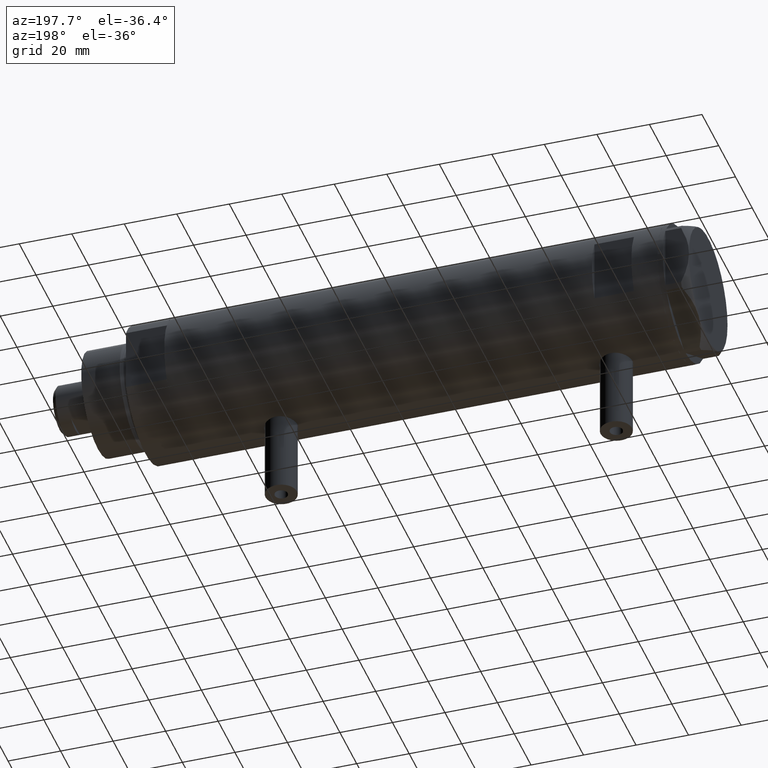
[diagram: clean part render]
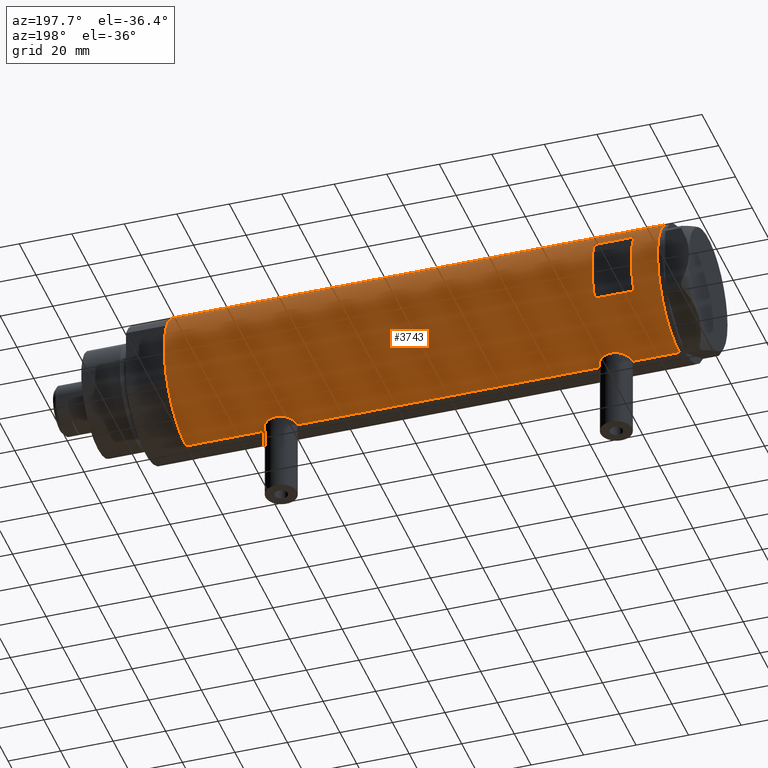
[diagram: same view with one face highlighted and labeled with its STEP entity id]
A machine part, auxiliary view. The second image highlights one B-rep face of the part: STEP entity #3743.
In plain terms, the highlighted cylindrical surface (partial cylindrical patch) has radius 26 mm, axis along (-1, -0, 0).
Its self-contained STEP definition (entity closure, byte-faithful):
#33 = ORIENTED_EDGE ( 'NONE', *, *, #1685, .F. ) ;
#37 = CARTESIAN_POINT ( 'NONE',  ( -25.95015815577422913, 1.621168830448742826, 75.98958570439820903 ) ) ;
#41 = CARTESIAN_POINT ( 'NONE',  ( 0.000000000000000000, 0.000000000000000000, 93.95000000000000284 ) ) ;
#85 = CARTESIAN_POINT ( 'NONE',  ( -25.24784248027028966, 6.209126813737962713, 69.12731838311943022 ) ) ;
#107 = CARTESIAN_POINT ( 'NONE',  ( -25.99759026373432036, 0.4091325989570689381, -63.88999890044897967 ) ) ;
#123 = VERTEX_POINT ( 'NONE', #1927 ) ;
#131 = CARTESIAN_POINT ( 'NONE',  ( 25.72923282622328500, 3.765147152416739917, 67.94514424215293502 ) ) ;
#135 = CARTESIAN_POINT ( 'NONE',  ( -25.33346170681504006, 5.849967696906726466, -55.44052947900495809 ) ) ;
#139 = CARTESIAN_POINT ( 'NONE',  ( -25.92432690655987315, 2.018143994254077978, 64.02070577177286737 ) ) ;
#148 = CARTESIAN_POINT ( 'NONE',  ( 25.98569222077104968, 0.9879514382926379845, -62.20081846687560301 ) ) ;
#164 = CARTESIAN_POINT ( 'NONE',  ( -25.98057228346869607, 1.024901789261878138, 63.78119414145174204 ) ) ;
#190 = CARTESIAN_POINT ( 'NONE',  ( -25.57167265924275057, 4.701795585128879296, -61.77276288310033436 ) ) ;
#194 = CARTESIAN_POINT ( 'NONE',  ( -25.49884629689154281, 5.081547904122039938, 66.30560194303913590 ) ) ;
#202 = ORIENTED_EDGE ( 'NONE', *, *, #4380, .F. ) ;
#203 = CARTESIAN_POINT ( 'NONE',  ( 24.97016856345952718, 7.245430721349219283, -56.70303040919392856 ) ) ;
#209 = DIRECTION ( 'NONE',  ( 0.000000000000000000, 4.625929269271486900E-15, 1.000000000000000000 ) ) ;
#217 = CARTESIAN_POINT ( 'NONE',  ( -25.49884629689154636, 5.081547904122044379, -61.29439805696090815 ) ) ;
#225 = CARTESIAN_POINT ( 'NONE',  ( 25.30960479024496479, 5.958491152160522830, -59.33139677679963597 ) ) ;
#230 = CARTESIAN_POINT ( 'NONE',  ( 12.12435565298214080, 23.00000000000000355, -93.95000000000000284 ) ) ;
#257 = CARTESIAN_POINT ( 'NONE',  ( -26.00000000000000355, -8.503928565788675107E-16, -51.39999999999999858 ) ) ;
#272 = EDGE_CURVE ( 'NONE', #3383, #3757, #3771, .T. ) ;
#273 = CARTESIAN_POINT ( 'NONE',  ( 25.93077501166307641, 1.957027822413551332, -47.49302141437592439 ) ) ;
#297 = CARTESIAN_POINT ( 'NONE',  ( 25.38117076385348625, 5.641057083563588037, -49.80143420258151821 ) ) ;
#304 = EDGE_CURVE ( 'NONE', #4161, #3757, #406, .T. ) ;
#309 = CARTESIAN_POINT ( 'NONE',  ( 25.98255381630416139, 0.9836221648041364451, 81.88933098058191717 ) ) ;
#341 = CARTESIAN_POINT ( 'NONE',  ( 26.00000000000000355, 3.343657407582877388E-16, -62.25000000000000000 ) ) ;
#342 = VECTOR ( 'NONE', #1190, 1000.000000000000000 ) ;
#349 = VECTOR ( 'NONE', #2119, 1000.000000000000000 ) ;
#361 = AXIS2_PLACEMENT_3D ( 'NONE', #5119, #1991, #1106 ) ;
#406 = LINE ( 'NONE', #2008, #497 ) ;
#441 = CARTESIAN_POINT ( 'NONE',  ( -26.00000000000000355, 3.184081677783118585E-15, 93.95000000000000284 ) ) ;
#497 = VECTOR ( 'NONE', #2769, 1000.000000000000000 ) ;
#520 = CARTESIAN_POINT ( 'NONE',  ( 25.41763780493359803, 5.474943943663456380, 79.58176313788932532 ) ) ;
#524 = CARTESIAN_POINT ( 'NONE',  ( -25.92257874449351007, 2.014648337067152184, -51.73003581636323389 ) ) ;
#551 = CARTESIAN_POINT ( 'NONE',  ( 25.72868876879096334, 3.768709330223698473, 80.95267486870062612 ) ) ;
#555 = CARTESIAN_POINT ( 'NONE',  ( -25.23766275406409676, 6.249830297096031551, -57.23808095444884003 ) ) ;
#577 = CARTESIAN_POINT ( 'NONE',  ( 25.78922176490238272, 3.335318700939508219, 67.71449431233527605 ) ) ;
#590 = AXIS2_PLACEMENT_3D ( 'NONE', #41, #3237, #3261 ) ;
#592 = CARTESIAN_POINT ( 'NONE',  ( 26.00000000000000355, 3.343657407582877388E-16, -62.25000000000000000 ) ) ;
#602 = CARTESIAN_POINT ( 'NONE',  ( 25.63006864069250668, 4.375159448492141223, 68.35345588241118264 ) ) ;
#607 = CARTESIAN_POINT ( 'NONE',  ( -25.23757896588369221, 6.250168635417633567, -58.05675308410501145 ) ) ;
#609 = CARTESIAN_POINT ( 'NONE',  ( 0.000000000000000000, 0.000000000000000000, -93.95000000000000284 ) ) ;
#631 = CARTESIAN_POINT ( 'NONE',  ( 25.08669247833292459, 6.831361936037321669, 77.55537739403790454 ) ) ;
#635 = CARTESIAN_POINT ( 'NONE',  ( -25.31738333113901618, 5.918941409682884291, -55.63242077527677765 ) ) ;
#678 = CARTESIAN_POINT ( 'NONE',  ( -26.00000000000000355, 3.184077527325983904E-15, 63.70000000000000995 ) ) ;
#682 = CARTESIAN_POINT ( 'NONE',  ( 0.000000000000000000, 0.000000000000000000, 83.95000000000000284 ) ) ;
#717 = ORIENTED_EDGE ( 'NONE', *, *, #2133, .F. ) ;
#721 = CARTESIAN_POINT ( 'NONE',  ( 26.00000000000000355, 0.000000000000000000, 93.95000000000000284 ) ) ;
#736 = DIRECTION ( 'NONE',  ( 0.000000000000000000, 0.000000000000000000, 1.000000000000000000 ) ) ;
#743 = CARTESIAN_POINT ( 'NONE',  ( 25.98255381630415783, 0.9836221648041303389, -47.31066901941807856 ) ) ;
#783 = CARTESIAN_POINT ( 'NONE',  ( 26.00000000000000355, -3.975028449552882818E-20, 81.94999999999998863 ) ) ;
#843 = ORIENTED_EDGE ( 'NONE', *, *, #3281, .F. ) ;
#863 = VECTOR ( 'NONE', #5111, 1000.000000000000000 ) ;
#877 = CARTESIAN_POINT ( 'NONE',  ( -25.23766275406408965, 6.249830297096023557, 70.36191904555120402 ) ) ;
#896 = VERTEX_POINT ( 'NONE', #1737 ) ;
#910 = ORIENTED_EDGE ( 'NONE', *, *, #4333, .F. ) ;
#935 = CARTESIAN_POINT ( 'NONE',  ( 25.38132706741445688, 5.649034551923786118, -59.70731952814044519 ) ) ;
#949 = EDGE_CURVE ( 'NONE', #3885, #3411, #2093, .T. ) ;
#1004 = CARTESIAN_POINT ( 'NONE',  ( -25.31518616157687163, 5.930210831981644226, -59.66587117207024704 ) ) ;
#1008 = B_SPLINE_CURVE_WITH_KNOTS ( 'NONE', 3,
 ( #2419, #2442, #1586, #3630, #37, #3180, #1227, #4020, #1198, #2002, #2795, #1613, #3207, #4049, #2053, #3655, #1664, #3257, #1277, #4473, #877, #4898, #85, #1796, #1410, #3394, #2521, #5006, #1328, #194, #3755, #3001, #4946, #4976, #4610, #1717, #2979, #139, #1689, #164, #2155, #1010, #4556, #678 ),
 .UNSPECIFIED., .F., .F.,
 ( 4, 2, 2, 2, 2, 2, 2, 2, 2, 2, 2, 2, 2, 2, 2, 2, 2, 2, 2, 2, 2, 4 ),
 ( 1.191872608207982896E-18, 0.001225774033668414415, 0.001838661050502624766, 0.002451548067336834901, 0.003677322101005254303, 0.004903096134673673272, 0.006128870168342093541, 0.007354644202010512943, 0.007967531218844704430, 0.008580418235678894182, 0.009806192269347313584, 0.01103196630301573472, 0.01225774033668415586, 0.01287062735351834561, 0.01348351437035253536, 0.01409640138718672858, 0.01470928840402092007, 0.01593506243768930131, 0.01716083647135768081, 0.01838661050502606725, 0.01899949752186025700, 0.01961238453869444676 ),
 .UNSPECIFIED. ) ;
#1009 = EDGE_CURVE ( 'NONE', #3885, #1013, #2329, .T. ) ;
#1010 = CARTESIAN_POINT ( 'NONE',  ( -25.99759026373432391, 0.4091325989570679389, 63.71000109955102175 ) ) ;
#1013 = VERTEX_POINT ( 'NONE', #341 ) ;
#1020 = CARTESIAN_POINT ( 'NONE',  ( 25.08669247833291749, 6.831361936037321669, -51.64462260596209831 ) ) ;
#1026 = DIRECTION ( 'NONE',  ( 0.000000000000000000, 1.000000000000000000, -4.803849625781927035E-15 ) ) ;
#1028 = CARTESIAN_POINT ( 'NONE',  ( 25.01140519645288762, 7.101774040639619479, 72.02607764299175130 ) ) ;
#1032 = CARTESIAN_POINT ( 'NONE',  ( -25.98789693408478740, 0.8193301824842007530, -63.84948980265349405 ) ) ;
#1103 = CARTESIAN_POINT ( 'NONE',  ( 25.99652140603931727, 0.4914164889130596126, 81.93796820480459075 ) ) ;
#1106 = DIRECTION ( 'NONE',  ( 1.000000000000000000, 0.000000000000000000, 0.000000000000000000 ) ) ;
#1148 = CARTESIAN_POINT ( 'NONE',  ( 25.41763780493360514, 5.474943943663457269, -49.61823686211067042 ) ) ;
#1158 = LINE ( 'NONE', #2753, #2350 ) ;
#1167 = ORIENTED_EDGE ( 'NONE', *, *, #272, .F. ) ;
#1168 = VERTEX_POINT ( 'NONE', #5167 ) ;
#1190 = DIRECTION ( 'NONE',  ( 0.000000000000000000, 0.000000000000000000, 1.000000000000000000 ) ) ;
#1198 = CARTESIAN_POINT ( 'NONE',  ( -25.81251897318926680, 3.135439098787735190, 75.37199178085172946 ) ) ;
#1227 = CARTESIAN_POINT ( 'NONE',  ( -25.90661719257679607, 2.209805098346973029, 75.79988745781523107 ) ) ;
#1244 = EDGE_CURVE ( 'NONE', #3411, #1747, #4743, .T. ) ;
#1277 = CARTESIAN_POINT ( 'NONE',  ( -25.27696731428695998, 6.089059008147561514, 71.37416306959482881 ) ) ;
#1328 = CARTESIAN_POINT ( 'NONE',  ( -25.45277932469920046, 5.307477387851101014, 66.64327199834690418 ) ) ;
#1343 = CARTESIAN_POINT ( 'NONE',  ( 24.95233689475078620, 7.306396477445174398, 72.73896186853336587 ) ) ;
#1346 = LINE ( 'NONE', #1758, #3297 ) ;
#1362 = CARTESIAN_POINT ( 'NONE',  ( 25.11254978876589306, 6.737777305585159304, -58.08025351746411502 ) ) ;
#1404 = CARTESIAN_POINT ( 'NONE',  ( -25.99009688862344092, 0.8219492608955333290, -51.44084060773424483 ) ) ;
#1410 = CARTESIAN_POINT ( 'NONE',  ( -25.31518616157687518, 5.930210831981638009, 67.93412882792976859 ) ) ;
#1423 = CARTESIAN_POINT ( 'NONE',  ( 25.48882460966380492, 5.133289275481214275, 68.97656476402090675 ) ) ;
#1426 = CARTESIAN_POINT ( 'NONE',  ( -25.92432690655987315, 2.018143994254076201, -63.57929422822715537 ) ) ;
#1439 = CARTESIAN_POINT ( 'NONE',  ( 25.17636585680005723, 6.493453152855874322, -50.98900750337196541 ) ) ;
#1442 = CIRCLE ( 'NONE', #2517, 26.00000000000000355 ) ;
#1448 = CARTESIAN_POINT ( 'NONE',  ( 25.20855488770172315, 6.367749707222633226, 78.42002223040960018 ) ) ;
#1496 = FACE_BOUND ( 'NONE', #3637, .T. ) ;
#1579 = CARTESIAN_POINT ( 'NONE',  ( -26.00000000000000355, 3.184081677783118585E-15, -93.95000000000000284 ) ) ;
#1586 = CARTESIAN_POINT ( 'NONE',  ( -25.99009688862344092, 0.8219492608955324409, 76.15915939226574949 ) ) ;
#1613 = CARTESIAN_POINT ( 'NONE',  ( -25.57189498399054983, 4.707763994471525493, 74.08090281055548587 ) ) ;
#1657 = ORIENTED_EDGE ( 'NONE', *, *, #1970, .F. ) ;
#1664 = CARTESIAN_POINT ( 'NONE',  ( -25.31738333113901263, 5.918941409682878074, 71.96757922472318114 ) ) ;
#1685 = EDGE_CURVE ( 'NONE', #3018, #896, #1442, .T. ) ;
#1689 = CARTESIAN_POINT ( 'NONE',  ( -25.95208098418916975, 1.628413954368974625, 63.90193207829288013 ) ) ;
#1701 = EDGE_CURVE ( 'NONE', #4900, #4119, #4308, .T. ) ;
#1709 = VERTEX_POINT ( 'NONE', #3120 ) ;
#1712 = CARTESIAN_POINT ( 'NONE',  ( -26.00000000000000355, 3.184077527250253257E-15, -63.90000000000001279 ) ) ;
#1717 = CARTESIAN_POINT ( 'NONE',  ( -25.81206132723604796, 3.139065735901513055, 64.53021230639123473 ) ) ;
#1732 = CARTESIAN_POINT ( 'NONE',  ( 25.38132706741445332, 5.649034551923781677, 69.49268047185955766 ) ) ;
#1737 = CARTESIAN_POINT ( 'NONE',  ( 12.12435565298214080, 23.00000000000000355, 83.95000000000000284 ) ) ;
#1746 = CARTESIAN_POINT ( 'NONE',  ( 25.27545867390324119, 6.096774941222088628, -50.37522593042033492 ) ) ;
#1747 = VERTEX_POINT ( 'NONE', #3007 ) ;
#1755 = CARTESIAN_POINT ( 'NONE',  ( 25.00820649268565887, 7.115348876445588999, 76.87184000475453161 ) ) ;
#1758 = CARTESIAN_POINT ( 'NONE',  ( -12.12435565298214080, 23.00000000000000355, -93.95000000000000284 ) ) ;
#1786 = CARTESIAN_POINT ( 'NONE',  ( 24.97016856345952007, 7.245430721349213954, 72.49696959080606007 ) ) ;
#1790 = CARTESIAN_POINT ( 'NONE',  ( -25.38875076695534361, 5.605452563035141722, -60.42185900824105715 ) ) ;
#1791 = ORIENTED_EDGE ( 'NONE', *, *, #1701, .T. ) ;
#1796 = CARTESIAN_POINT ( 'NONE',  ( -25.28673619335055278, 6.048783215285170378, 68.32449009651820404 ) ) ;
#1814 = CARTESIAN_POINT ( 'NONE',  ( -25.45277932469921467, 5.307477387851106343, -60.95672800165311855 ) ) ;
#1823 = CARTESIAN_POINT ( 'NONE',  ( 24.95233689475079331, 7.306396477445179727, -56.46103813146666539 ) ) ;
#1831 = CARTESIAN_POINT ( 'NONE',  ( 25.11254978876589306, 6.737777305585155752, 71.11974648253585940 ) ) ;
#1835 = DIRECTION ( 'NONE',  ( 0.000000000000000000, 0.000000000000000000, 1.000000000000000000 ) ) ;
#1837 = EDGE_LOOP ( 'NONE', ( #2510, #2455, #910, #1791, #4877, #3656, #1167, #1657, #2986, #717, #843, #4917 ) ) ;
#1844 = CARTESIAN_POINT ( 'NONE',  ( 25.97197502027375293, 1.230965554787593730, -47.34759175501623218 ) ) ;
#1863 = CIRCLE ( 'NONE', #2117, 26.00000000000000355 ) ;
#1898 = DIRECTION ( 'NONE',  ( 0.000000000000000000, 0.000000000000000000, 1.000000000000000000 ) ) ;
#1927 = CARTESIAN_POINT ( 'NONE',  ( 26.00000000000000355, -2.747580718823405516E-15, 66.95000000000000284 ) ) ;
#1970 = EDGE_CURVE ( 'NONE', #5028, #3383, #4575, .T. ) ;
#1991 = DIRECTION ( 'NONE',  ( 0.000000000000000000, 0.000000000000000000, 1.000000000000000000 ) ) ;
#2002 = CARTESIAN_POINT ( 'NONE',  ( -25.72105193281917579, 3.813738527046907745, 74.91833691099432713 ) ) ;
#2004 = EDGE_CURVE ( 'NONE', #123, #5028, #2694, .T. ) ;
#2006 = B_SPLINE_CURVE_WITH_KNOTS ( 'NONE', 3,
 ( #592, #2586, #148, #4986, #2561, #3423, #2141, #2218, #2927, #4510, #4534, #2529, #2190, #935, #225, #4168, #1362, #3791, #2165, #203, #1823, #4139, #4565, #3343, #3741, #5013, #4617, #1020, #5032, #1439, #2110, #1746, #3101, #297, #1148, #2638, #3033, #4740, #4344, #2743, #273, #1844, #743, #4687, #2686, #3131 ),
 .UNSPECIFIED., .F., .F.,
 ( 4, 2, 2, 2, 2, 2, 2, 2, 2, 2, 2, 2, 2, 2, 2, 2, 2, 2, 2, 2, 2, 2, 4 ),
 ( 3.246886709775799722E-19, 0.001473395154583074379, 0.002210092731874609400, 0.002946790309166144421, 0.004420185463749214463, 0.005156883041040750786, 0.005893580618332287108, 0.007366975772915358017, 0.008840370927498430662, 0.009577068504789955708, 0.01031376608208147902, 0.01178716123666452911, 0.01326055639124757921, 0.01473395154583062930, 0.01547064912312214567, 0.01620734670041366204, 0.01694404427770517668, 0.01768074185499669479, 0.01915413700957973794, 0.02062753216416278457, 0.02210092731874583119, 0.02283762489603735277, 0.02357432247332888128 ),
 .UNSPECIFIED. ) ;
#2008 = CARTESIAN_POINT ( 'NONE',  ( -26.00000000000000355, 3.184081677783118585E-15, -93.95000000000000284 ) ) ;
#2048 = CARTESIAN_POINT ( 'NONE',  ( -26.00000000000000355, -8.503928565788675107E-16, -51.39999999999999858 ) ) ;
#2053 = CARTESIAN_POINT ( 'NONE',  ( -25.38675822915647728, 5.615881323213574028, 72.72306781662010167 ) ) ;
#2058 = CARTESIAN_POINT ( 'NONE',  ( -12.12435565298214080, 23.00000000000000355, 83.95000000000000284 ) ) ;
#2093 = CIRCLE ( 'NONE', #4202, 26.00000000000000355 ) ;
#2110 = CARTESIAN_POINT ( 'NONE',  ( 25.20855488770171959, 6.367749707222635891, -50.77997776959043108 ) ) ;
#2117 = AXIS2_PLACEMENT_3D ( 'NONE', #3428, #209, #1026 ) ;
#2119 = DIRECTION ( 'NONE',  ( 0.000000000000000000, 0.000000000000000000, 1.000000000000000000 ) ) ;
#2133 = EDGE_CURVE ( 'NONE', #1709, #123, #1158, .T. ) ;
#2139 = B_SPLINE_CURVE_WITH_KNOTS ( 'NONE', 3,
 ( #2048, #2625, #1404, #3388, #3331, #524, #4232, #4204, #2971, #3308, #3727, #4941, #4152, #4579, #5001, #135, #635, #2597, #4918, #3413, #555, #607, #4179, #2941, #1004, #2996, #1790, #2206, #1814, #217, #2231, #190, #3019, #4551, #3805, #3751, #5021, #1426, #4631, #2544, #1032, #107, #3776, #1712 ),
 .UNSPECIFIED., .F., .F.,
 ( 4, 2, 2, 2, 2, 2, 2, 2, 2, 2, 2, 2, 2, 2, 2, 2, 2, 2, 2, 2, 2, 4 ),
 ( 8.259724962660511443E-19, 0.001225774033668413547, 0.001838661050502616960, 0.002451548067336820590, 0.003677322101005227849, 0.004903096134673635108, 0.006128870168342044969, 0.007354644202010452228, 0.007967531218844647184, 0.008580418235678840405, 0.009806192269347230317, 0.01103196630301561676, 0.01225774033668400667, 0.01287062735351820163, 0.01348351437035239485, 0.01409640138718658807, 0.01470928840402078129, 0.01593506243768920069, 0.01716083647135761489, 0.01838661050502603256, 0.01899949752186024313, 0.01961238453869445023 ),
 .UNSPECIFIED. ) ;
#2141 = CARTESIAN_POINT ( 'NONE',  ( 25.86510134953875450, 2.654921787384013854, -61.76867061694904493 ) ) ;
#2148 = CARTESIAN_POINT ( 'NONE',  ( 25.94484652078418563, 1.709678645892022342, 67.14334653240823059 ) ) ;
#2155 = CARTESIAN_POINT ( 'NONE',  ( -25.98789693408479096, 0.8193301824841990877, 63.75051019734653579 ) ) ;
#2165 = CARTESIAN_POINT ( 'NONE',  ( 25.01140519645288762, 7.101774040639623919, -57.17392235700823733 ) ) ;
#2172 = CARTESIAN_POINT ( 'NONE',  ( 26.00000000000000355, -2.747580718823405516E-15, 66.95000000000000284 ) ) ;
#2190 = CARTESIAN_POINT ( 'NONE',  ( 25.48882460966380492, 5.133289275481218716, -60.22343523597908188 ) ) ;
#2202 = CARTESIAN_POINT ( 'NONE',  ( 25.52465069878074289, 4.952713637311392247, 68.81255139184744962 ) ) ;
#2206 = CARTESIAN_POINT ( 'NONE',  ( -25.43062364804612940, 5.412314182902760784, -60.78227648580931941 ) ) ;
#2218 = CARTESIAN_POINT ( 'NONE',  ( 25.78922176490237916, 3.335318700939508219, -61.48550568766475521 ) ) ;
#2227 = CARTESIAN_POINT ( 'NONE',  ( 24.96662810169869573, 7.257932614256865200, 76.40297309526735603 ) ) ;
#2231 = CARTESIAN_POINT ( 'NONE',  ( -25.52275868012768356, 4.960454986366454655, -61.45761629406634796 ) ) ;
#2329 = LINE ( 'NONE', #3929, #3936 ) ;
#2350 = VECTOR ( 'NONE', #3845, 1000.000000000000000 ) ;
#2419 = CARTESIAN_POINT ( 'NONE',  ( -26.00000000000000355, 1.227111019500118713E-15, 76.20000000000001705 ) ) ;
#2442 = CARTESIAN_POINT ( 'NONE',  ( -26.00000000000000711, 0.4145874687851191509, 76.20000000000003126 ) ) ;
#2455 = ORIENTED_EDGE ( 'NONE', *, *, #1244, .T. ) ;
#2510 = ORIENTED_EDGE ( 'NONE', *, *, #949, .T. ) ;
#2517 = AXIS2_PLACEMENT_3D ( 'NONE', #682, #5178, #4729 ) ;
#2521 = CARTESIAN_POINT ( 'NONE',  ( -25.38875076695534361, 5.605452563035131064, 67.17814099175893716 ) ) ;
#2529 = CARTESIAN_POINT ( 'NONE',  ( 25.52465069878074999, 4.952713637311402906, -60.38744860815256743 ) ) ;
#2540 = CARTESIAN_POINT ( 'NONE',  ( 25.92799636947105668, 1.948138538329397651, 67.20322312211786198 ) ) ;
#2544 = CARTESIAN_POINT ( 'NONE',  ( -25.98057228346870673, 1.024901789261887464, -63.81880585854828070 ) ) ;
#2561 = CARTESIAN_POINT ( 'NONE',  ( 25.92799636947105313, 1.948138538329397651, -61.99677687788213376 ) ) ;
#2569 = CARTESIAN_POINT ( 'NONE',  ( 25.98569222077104968, 0.9879514382926418703, 66.99918153312439983 ) ) ;
#2586 = CARTESIAN_POINT ( 'NONE',  ( 26.00000000000000711, 0.4983968644076025023, -62.25000000000002132 ) ) ;
#2597 = CARTESIAN_POINT ( 'NONE',  ( -25.28915991580758771, 6.038390257328915212, -56.02447348853092279 ) ) ;
#2622 = CARTESIAN_POINT ( 'NONE',  ( 24.90951684770588770, 7.451587374037535128, 73.46604395478802019 ) ) ;
#2625 = CARTESIAN_POINT ( 'NONE',  ( -26.00000000000000711, 0.4145874687851193174, -51.39999999999999858 ) ) ;
#2638 = CARTESIAN_POINT ( 'NONE',  ( 25.52590365620542912, 4.955152228772147893, -49.09876272411761988 ) ) ;
#2650 = CARTESIAN_POINT ( 'NONE',  ( 25.31017500740586001, 5.951503630041874437, 79.02049592637401076 ) ) ;
#2671 = CARTESIAN_POINT ( 'NONE',  ( 26.00000000000000711, 0.2455784580650491045, 81.94999999999997442 ) ) ;
#2686 = CARTESIAN_POINT ( 'NONE',  ( 26.00000000000000000, 0.2455784580650491877, -47.25000000000000000 ) ) ;
#2694 = B_SPLINE_CURVE_WITH_KNOTS ( 'NONE', 3,
 ( #2172, #3721, #2569, #2148, #2540, #3748, #5019, #577, #131, #602, #4200, #2202, #1423, #1732, #3017, #2967, #1831, #5043, #1028, #1786, #1343, #2622, #3382, #2993, #4228, #2227, #1755, #631, #3353, #3430, #1448, #4655, #2650, #3327, #520, #2937, #4545, #551, #4966, #3899, #4251, #3111, #309, #1103, #2671, #3143 ),
 .UNSPECIFIED., .F., .F.,
 ( 4, 2, 2, 2, 2, 2, 2, 2, 2, 2, 2, 2, 2, 2, 2, 2, 2, 2, 2, 2, 2, 2, 4 ),
 ( 2.668061416744542197E-18, 0.001473395154583026240, 0.002210092731874533506, 0.002946790309166040771, 0.004420185463749071349, 0.005156883041040585987, 0.005893580618332101492, 0.007366975772915162861, 0.008840370927498224229, 0.009577068504789754480, 0.01031376608208128473, 0.01178716123666438687, 0.01326055639124748900, 0.01473395154583059113, 0.01547064912312212312, 0.01620734670041365511, 0.01694404427770518709, 0.01768074185499672255, 0.01915413700957975529, 0.02062753216416278457, 0.02210092731874581731, 0.02283762489603732848, 0.02357432247332884312 ),
 .UNSPECIFIED. ) ;
#2743 = CARTESIAN_POINT ( 'NONE',  ( 25.89067367629246164, 2.424883365422552561, -47.63594795494832113 ) ) ;
#2753 = CARTESIAN_POINT ( 'NONE',  ( 26.00000000000000355, 0.000000000000000000, -93.95000000000000284 ) ) ;
#2769 = DIRECTION ( 'NONE',  ( 0.000000000000000000, 0.000000000000000000, 1.000000000000000000 ) ) ;
#2795 = CARTESIAN_POINT ( 'NONE',  ( -25.67095236150574777, 4.133649689219788925, 74.65535228274264057 ) ) ;
#2893 = VERTEX_POINT ( 'NONE', #3895 ) ;
#2908 = EDGE_CURVE ( 'NONE', #896, #1168, #3821, .T. ) ;
#2927 = CARTESIAN_POINT ( 'NONE',  ( 25.72923282622328855, 3.765147152416745246, -61.25485575784708914 ) ) ;
#2937 = CARTESIAN_POINT ( 'NONE',  ( 25.52590365620543622, 4.955152228772151446, 80.10123727588241138 ) ) ;
#2941 = CARTESIAN_POINT ( 'NONE',  ( -25.28673619335056699, 6.048783215285175707, -59.27550990348180449 ) ) ;
#2967 = CARTESIAN_POINT ( 'NONE',  ( 25.17424625143663519, 6.506691718592092499, 70.68758373966274178 ) ) ;
#2971 = CARTESIAN_POINT ( 'NONE',  ( -25.81251897318926680, 3.135439098787741852, -52.22800821914827907 ) ) ;
#2979 = CARTESIAN_POINT ( 'NONE',  ( -25.85449082491264150, 2.772892880050696007, 64.33390702514678594 ) ) ;
#2986 = ORIENTED_EDGE ( 'NONE', *, *, #2004, .F. ) ;
#2991 = CARTESIAN_POINT ( 'NONE',  ( 26.00000000000000355, 0.000000000000000000, -93.95000000000000284 ) ) ;
#2993 = CARTESIAN_POINT ( 'NONE',  ( 24.89471231507667426, 7.500219916954787180, 74.93878226883029470 ) ) ;
#2996 = CARTESIAN_POINT ( 'NONE',  ( -25.36894112891956254, 5.694149517195242538, -60.23482505198307990 ) ) ;
#3001 = CARTESIAN_POINT ( 'NONE',  ( -25.57167265924275057, 4.701795585128869526, 65.82723711689968127 ) ) ;
#3007 = CARTESIAN_POINT ( 'NONE',  ( -26.00000000000000355, 3.184077527250253257E-15, -63.90000000000001279 ) ) ;
#3017 = CARTESIAN_POINT ( 'NONE',  ( 25.30960479024496479, 5.958491152160513948, 69.86860322320036687 ) ) ;
#3018 = VERTEX_POINT ( 'NONE', #2058 ) ;
#3019 = CARTESIAN_POINT ( 'NONE',  ( -25.59680708126580129, 4.563450671387948354, -61.92543949979970819 ) ) ;
#3033 = CARTESIAN_POINT ( 'NONE',  ( 25.59685363299823280, 4.579266302355748053, -48.79027931897346804 ) ) ;
#3047 = DIRECTION ( 'NONE',  ( 1.000000000000000000, 0.000000000000000000, 0.000000000000000000 ) ) ;
#3082 = CARTESIAN_POINT ( 'NONE',  ( -26.00000000000000355, 3.184081677783118585E-15, -93.95000000000000284 ) ) ;
#3089 = CYLINDRICAL_SURFACE ( 'NONE', #361, 26.00000000000000355 ) ;
#3101 = CARTESIAN_POINT ( 'NONE',  ( 25.31017500740584936, 5.951503630041857562, -50.17950407362597076 ) ) ;
#3111 = CARTESIAN_POINT ( 'NONE',  ( 25.97197502027376004, 1.230965554787597060, 81.85240824498373513 ) ) ;
#3120 = CARTESIAN_POINT ( 'NONE',  ( 26.00000000000000355, -3.975025925197986111E-20, -47.25000000000000000 ) ) ;
#3131 = CARTESIAN_POINT ( 'NONE',  ( 26.00000000000000355, -3.975025925197986111E-20, -47.25000000000000000 ) ) ;
#3143 = CARTESIAN_POINT ( 'NONE',  ( 26.00000000000000355, -3.975028449552882818E-20, 81.94999999999998863 ) ) ;
#3180 = CARTESIAN_POINT ( 'NONE',  ( -25.92257874449350652, 2.014648337067151296, 75.86996418363679595 ) ) ;
#3207 = CARTESIAN_POINT ( 'NONE',  ( -25.52242378584899640, 4.965907353613394193, 73.76719602921740204 ) ) ;
#3237 = DIRECTION ( 'NONE',  ( 0.000000000000000000, 0.000000000000000000, 1.000000000000000000 ) ) ;
#3257 = CARTESIAN_POINT ( 'NONE',  ( -25.28915991580760192, 6.038390257328910771, 71.57552651146907863 ) ) ;
#3261 = DIRECTION ( 'NONE',  ( 1.000000000000000000, 0.000000000000000000, 0.000000000000000000 ) ) ;
#3281 = EDGE_CURVE ( 'NONE', #1013, #1709, #2006, .T. ) ;
#3297 = VECTOR ( 'NONE', #3357, 1000.000000000000000 ) ;
#3308 = CARTESIAN_POINT ( 'NONE',  ( -25.72105193281916868, 3.813738527046913962, -52.68166308900566719 ) ) ;
#3327 = CARTESIAN_POINT ( 'NONE',  ( 25.38117076385347559, 5.641057083563602248, 79.39856579741847042 ) ) ;
#3331 = CARTESIAN_POINT ( 'NONE',  ( -25.95015815577423268, 1.621168830448744158, -51.61041429560182081 ) ) ;
#3343 = CARTESIAN_POINT ( 'NONE',  ( 24.89471231507667071, 7.500219916954787180, -54.26121773116971525 ) ) ;
#3353 = CARTESIAN_POINT ( 'NONE',  ( 25.11550258961940330, 6.725017566862031337, 77.77928477806021590 ) ) ;
#3357 = DIRECTION ( 'NONE',  ( 0.000000000000000000, 0.000000000000000000, 1.000000000000000000 ) ) ;
#3382 = CARTESIAN_POINT ( 'NONE',  ( 24.89484527721569052, 7.499778575171894168, 73.95449194517063063 ) ) ;
#3383 = VERTEX_POINT ( 'NONE', #721 ) ;
#3388 = CARTESIAN_POINT ( 'NONE',  ( -25.96182217530152769, 1.422664245316466847, -51.56064726907609241 ) ) ;
#3394 = CARTESIAN_POINT ( 'NONE',  ( -25.36894112891957320, 5.694149517195235433, 67.36517494801691441 ) ) ;
#3411 = VERTEX_POINT ( 'NONE', #3971 ) ;
#3413 = CARTESIAN_POINT ( 'NONE',  ( -25.24766879991037882, 6.209837761082661167, -56.83150430970306388 ) ) ;
#3423 = CARTESIAN_POINT ( 'NONE',  ( 25.88814720404043968, 2.420758939209242566, -61.85288286828453153 ) ) ;
#3428 = CARTESIAN_POINT ( 'NONE',  ( 0.000000000000000000, 0.000000000000000000, 68.95000000000008811 ) ) ;
#3430 = CARTESIAN_POINT ( 'NONE',  ( 25.17636585680005723, 6.493453152855874322, 78.21099249662802322 ) ) ;
#3464 = CARTESIAN_POINT ( 'NONE',  ( -26.00000000000000355, 1.227111019500118713E-15, 76.20000000000001705 ) ) ;
#3478 = EDGE_CURVE ( 'NONE', #4161, #4119, #1008, .T. ) ;
#3630 = CARTESIAN_POINT ( 'NONE',  ( -25.96182217530153480, 1.422664245316465959, 76.03935273092392322 ) ) ;
#3637 = EDGE_LOOP ( 'NONE', ( #202, #5033, #4483, #33 ) ) ;
#3655 = CARTESIAN_POINT ( 'NONE',  ( -25.33346170681504361, 5.849967696906720249, 72.15947052099508596 ) ) ;
#3656 = ORIENTED_EDGE ( 'NONE', *, *, #304, .T. ) ;
#3721 = CARTESIAN_POINT ( 'NONE',  ( 26.00000000000001066, 0.4983968644076011700, 66.95000000000003126 ) ) ;
#3727 = CARTESIAN_POINT ( 'NONE',  ( -25.67095236150573712, 4.133649689219792478, -52.94464771725741770 ) ) ;
#3741 = CARTESIAN_POINT ( 'NONE',  ( 24.90976107960111818, 7.450765568638821890, -53.76117130648535181 ) ) ;
#3743 = ADVANCED_FACE ( 'NONE', ( #1496, #5097 ), #3089, .T. ) ;
#3748 = CARTESIAN_POINT ( 'NONE',  ( 25.88814720404043968, 2.420758939209242566, 67.34711713171545000 ) ) ;
#3751 = CARTESIAN_POINT ( 'NONE',  ( -25.81206132723605506, 3.139065735901513055, -63.06978769360878090 ) ) ;
#3755 = CARTESIAN_POINT ( 'NONE',  ( -25.52275868012768356, 4.960454986366445773, 66.14238370593371030 ) ) ;
#3757 = VERTEX_POINT ( 'NONE', #441 ) ;
#3771 = CIRCLE ( 'NONE', #590, 26.00000000000000355 ) ;
#3776 = CARTESIAN_POINT ( 'NONE',  ( -26.00000000000000711, 0.2043916521039016998, -63.90000000000001279 ) ) ;
#3791 = CARTESIAN_POINT ( 'NONE',  ( 25.03487248886523986, 7.018875226450791871, -57.40423217392064714 ) ) ;
#3805 = CARTESIAN_POINT ( 'NONE',  ( -25.72087293759780025, 3.814831448865739105, -62.61738294827859619 ) ) ;
#3821 = LINE ( 'NONE', #230, #863 ) ;
#3845 = DIRECTION ( 'NONE',  ( 0.000000000000000000, 0.000000000000000000, 1.000000000000000000 ) ) ;
#3859 = EDGE_CURVE ( 'NONE', #1168, #2893, #1863, .T. ) ;
#3885 = VERTEX_POINT ( 'NONE', #2991 ) ;
#3895 = CARTESIAN_POINT ( 'NONE',  ( -12.12435565298214080, 23.00000000000000355, 68.95000000000000284 ) ) ;
#3899 = CARTESIAN_POINT ( 'NONE',  ( 25.89067367629246164, 2.424883365422562775, 81.56405204505169593 ) ) ;
#3929 = CARTESIAN_POINT ( 'NONE',  ( 26.00000000000000355, 0.000000000000000000, -93.95000000000000284 ) ) ;
#3936 = VECTOR ( 'NONE', #736, 1000.000000000000000 ) ;
#3971 = CARTESIAN_POINT ( 'NONE',  ( -26.00000000000000355, 3.184081677783118585E-15, -93.95000000000000284 ) ) ;
#4020 = CARTESIAN_POINT ( 'NONE',  ( -25.85406084573621754, 2.777003695811651962, 75.56412841326095986 ) ) ;
#4049 = CARTESIAN_POINT ( 'NONE',  ( -25.42927140605242187, 5.422776733968214025, 73.08443996013286892 ) ) ;
#4119 = VERTEX_POINT ( 'NONE', #4363 ) ;
#4139 = CARTESIAN_POINT ( 'NONE',  ( 24.90951684770588415, 7.451587374037536016, -55.73395604521197555 ) ) ;
#4152 = CARTESIAN_POINT ( 'NONE',  ( -25.52242378584900351, 4.965907353613399522, -53.83280397078263491 ) ) ;
#4161 = VERTEX_POINT ( 'NONE', #3464 ) ;
#4168 = CARTESIAN_POINT ( 'NONE',  ( 25.17424625143663164, 6.506691718592096940, -58.51241626033723975 ) ) ;
#4179 = CARTESIAN_POINT ( 'NONE',  ( -25.24784248027028966, 6.209126813737967154, -58.47268161688059251 ) ) ;
#4200 = CARTESIAN_POINT ( 'NONE',  ( 25.59528664075984139, 4.573671112500290903, 68.50090496483272773 ) ) ;
#4202 = AXIS2_PLACEMENT_3D ( 'NONE', #609, #1835, #3047 ) ;
#4204 = CARTESIAN_POINT ( 'NONE',  ( -25.85406084573621754, 2.777003695811657735, -52.03587158673904156 ) ) ;
#4228 = CARTESIAN_POINT ( 'NONE',  ( 24.90976107960111818, 7.450765568638821001, 75.43882869351466525 ) ) ;
#4232 = CARTESIAN_POINT ( 'NONE',  ( -25.90661719257678541, 2.209805098346977914, -51.80011254218477745 ) ) ;
#4251 = CARTESIAN_POINT ( 'NONE',  ( 25.93077501166307641, 1.957027822413550888, 81.70697858562411398 ) ) ;
#4285 = VECTOR ( 'NONE', #1898, 1000.000000000000000 ) ;
#4308 = LINE ( 'NONE', #1579, #342 ) ;
#4333 = EDGE_CURVE ( 'NONE', #4900, #1747, #2139, .T. ) ;
#4344 = CARTESIAN_POINT ( 'NONE',  ( 25.78997056644824326, 3.329333406239038951, -48.01165191566153112 ) ) ;
#4363 = CARTESIAN_POINT ( 'NONE',  ( -26.00000000000000355, 3.184077527325983904E-15, 63.70000000000000995 ) ) ;
#4380 = EDGE_CURVE ( 'NONE', #2893, #3018, #1346, .T. ) ;
#4473 = CARTESIAN_POINT ( 'NONE',  ( -25.24766879991037172, 6.209837761082654062, 70.76849569029700149 ) ) ;
#4483 = ORIENTED_EDGE ( 'NONE', *, *, #2908, .F. ) ;
#4510 = CARTESIAN_POINT ( 'NONE',  ( 25.63006864069249602, 4.375159448492148329, -60.84654411758881309 ) ) ;
#4534 = CARTESIAN_POINT ( 'NONE',  ( 25.59528664075983428, 4.573671112500298896, -60.69909503516726090 ) ) ;
#4545 = CARTESIAN_POINT ( 'NONE',  ( 25.59685363299823635, 4.579266302355753382, 80.40972068102654191 ) ) ;
#4551 = CARTESIAN_POINT ( 'NONE',  ( -25.67176285215958131, 4.128807479817791837, -62.35991598451128226 ) ) ;
#4556 = CARTESIAN_POINT ( 'NONE',  ( -26.00000000000000000, 0.2043916521039007284, 63.69999999999999574 ) ) ;
#4565 = CARTESIAN_POINT ( 'NONE',  ( 24.89484527721569052, 7.499778575171895056, -55.24550805482936511 ) ) ;
#4575 = LINE ( 'NONE', #4938, #349 ) ;
#4579 = CARTESIAN_POINT ( 'NONE',  ( -25.42927140605242187, 5.422776733968219354, -54.51556003986718224 ) ) ;
#4610 = CARTESIAN_POINT ( 'NONE',  ( -25.72087293759779669, 3.814831448865735997, 64.98261705172141944 ) ) ;
#4617 = CARTESIAN_POINT ( 'NONE',  ( 25.00820649268565887, 7.115348876445586335, -52.32815999524549966 ) ) ;
#4631 = CARTESIAN_POINT ( 'NONE',  ( -25.95208098418916975, 1.628413954368986172, -63.69806792170716392 ) ) ;
#4655 = CARTESIAN_POINT ( 'NONE',  ( 25.27545867390324830, 6.096774941222087740, 78.82477406957966082 ) ) ;
#4687 = CARTESIAN_POINT ( 'NONE',  ( 25.99652140603931727, 0.4914164889130531177, -47.26203179519542630 ) ) ;
#4729 = DIRECTION ( 'NONE',  ( 1.000000000000000000, -5.329070518200751394E-15, 0.000000000000000000 ) ) ;
#4740 = CARTESIAN_POINT ( 'NONE',  ( 25.72868876879095623, 3.768709330223690479, -48.24732513129933409 ) ) ;
#4743 = LINE ( 'NONE', #3082, #4285 ) ;
#4877 = ORIENTED_EDGE ( 'NONE', *, *, #3478, .F. ) ;
#4898 = CARTESIAN_POINT ( 'NONE',  ( -25.23757896588369576, 6.250168635417627350, 69.54324691589501128 ) ) ;
#4900 = VERTEX_POINT ( 'NONE', #257 ) ;
#4917 = ORIENTED_EDGE ( 'NONE', *, *, #1009, .F. ) ;
#4918 = CARTESIAN_POINT ( 'NONE',  ( -25.27696731428695287, 6.089059008147567731, -56.22583693040519393 ) ) ;
#4938 = CARTESIAN_POINT ( 'NONE',  ( 26.00000000000000355, 0.000000000000000000, -93.95000000000000284 ) ) ;
#4941 = CARTESIAN_POINT ( 'NONE',  ( -25.57189498399055694, 4.707763994471532598, -53.51909718944453687 ) ) ;
#4946 = CARTESIAN_POINT ( 'NONE',  ( -25.59680708126579773, 4.563450671387936808, 65.67456050020027192 ) ) ;
#4966 = CARTESIAN_POINT ( 'NONE',  ( 25.78997056644825392, 3.329333406239046056, 81.18834808433850014 ) ) ;
#4976 = CARTESIAN_POINT ( 'NONE',  ( -25.67176285215957776, 4.128807479817784731, 65.24008401548877600 ) ) ;
#4986 = CARTESIAN_POINT ( 'NONE',  ( 25.94484652078418563, 1.709678645892020787, -62.05665346759173673 ) ) ;
#5001 = CARTESIAN_POINT ( 'NONE',  ( -25.38675822915647728, 5.615881323213575804, -54.87693218337989265 ) ) ;
#5006 = CARTESIAN_POINT ( 'NONE',  ( -25.43062364804611875, 5.412314182902751902, 66.81772351419068912 ) ) ;
#5013 = CARTESIAN_POINT ( 'NONE',  ( 24.96662810169869573, 7.257932614256868753, -52.79702690473266102 ) ) ;
#5019 = CARTESIAN_POINT ( 'NONE',  ( 25.86510134953875450, 2.654921787384013854, 67.43132938305096502 ) ) ;
#5021 = CARTESIAN_POINT ( 'NONE',  ( -25.85449082491264150, 2.772892880050693787, -63.26609297485322259 ) ) ;
#5028 = VERTEX_POINT ( 'NONE', #783 ) ;
#5032 = CARTESIAN_POINT ( 'NONE',  ( 25.11550258961939974, 6.725017566862030449, -51.42071522193980826 ) ) ;
#5033 = ORIENTED_EDGE ( 'NONE', *, *, #3859, .F. ) ;
#5043 = CARTESIAN_POINT ( 'NONE',  ( 25.03487248886523986, 7.018875226450789206, 71.79576782607935570 ) ) ;
#5097 = FACE_OUTER_BOUND ( 'NONE', #1837, .T. ) ;
#5111 = DIRECTION ( 'NONE',  ( -0.000000000000000000, -0.000000000000000000, -1.000000000000000000 ) ) ;
#5119 = CARTESIAN_POINT ( 'NONE',  ( 0.000000000000000000, 0.000000000000000000, -93.95000000000000284 ) ) ;
#5167 = CARTESIAN_POINT ( 'NONE',  ( 12.12435565298213724, 23.00000000000000355, 68.95000000000000284 ) ) ;
#5178 = DIRECTION ( 'NONE',  ( -0.000000000000000000, -0.000000000000000000, -1.000000000000000000 ) ) ;